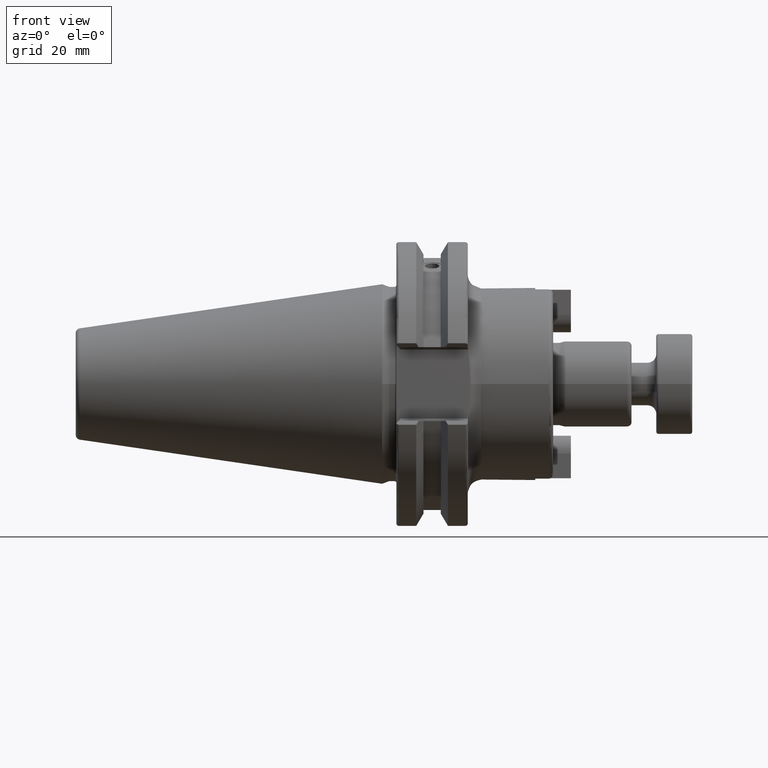
[diagram: clean part render]
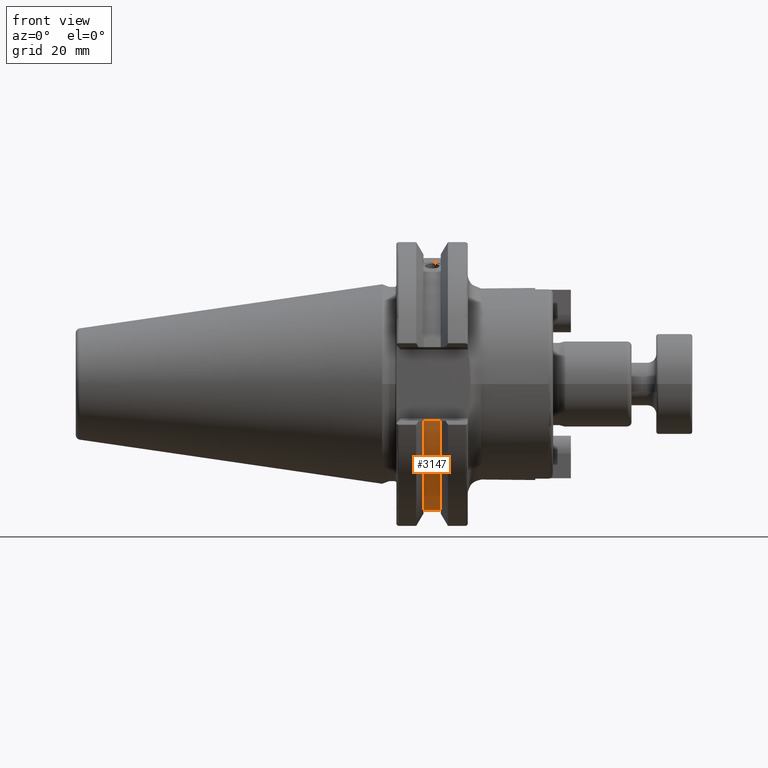
[diagram: same view with one face highlighted and labeled with its STEP entity id]
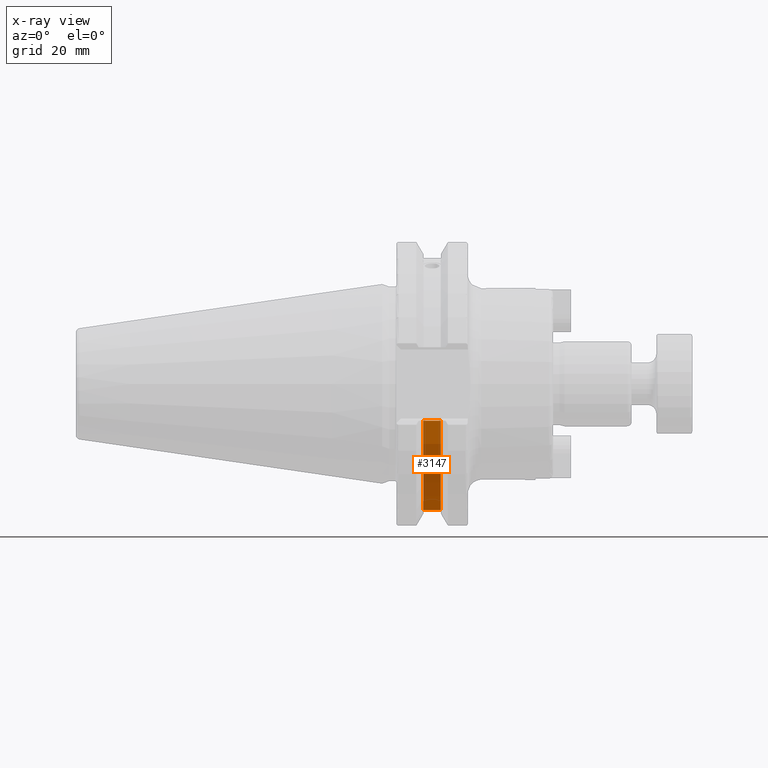
[diagram: x-ray of the same camera — body ghosted, the highlighted face saturated]
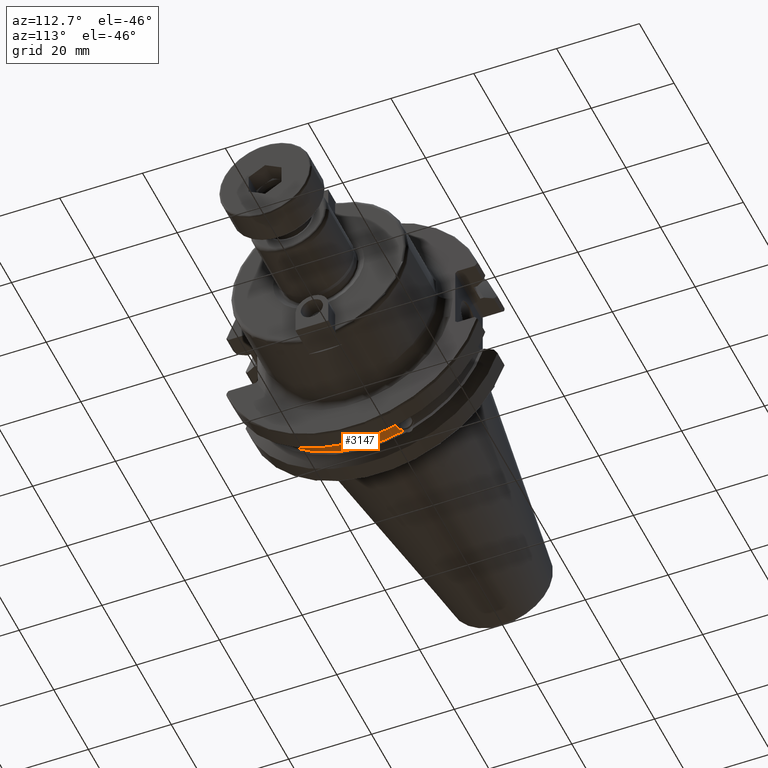
[diagram: same view with one face highlighted and labeled with its STEP entity id]
A machine part, front view. The second image highlights one B-rep face of the part: STEP entity #3147.
The next image is the same camera in x-ray: the body ghosted, the highlighted face saturated — about 0% of this face is hidden behind the body in this view.
A second angle (auxiliary view) of the same face is appended — the face is thin or edge-on in the first view.
In plain terms, the highlighted cylindrical surface (partial cylindrical patch) has radius 28.15 mm, axis along (1, 0, 0).
Its self-contained STEP definition (entity closure, byte-faithful):
#445=CARTESIAN_POINT('',(3.628503937008E-1,3.472129702295E-1,
-1.052473507894E0));
#446=CARTESIAN_POINT('',(3.652490708476E-1,3.421063017045E-1,
-1.054158207351E0));
#447=CARTESIAN_POINT('',(3.710883446170E-1,3.325129750843E-1,
-1.057241697940E0));
#448=CARTESIAN_POINT('',(3.831355651528E-1,3.198019938941E-1,
-1.061146913832E0));
#449=CARTESIAN_POINT('',(3.982224892125E-1,3.095194666412E-1,
-1.064181893461E0));
#450=CARTESIAN_POINT('',(4.166089875815E-1,3.022703946370E-1,
-1.066254659124E0));
#451=CARTESIAN_POINT('',(4.307672161502E-1,3.003025428222E-1,
-1.066806315265E0));
#452=CARTESIAN_POINT('',(4.383503937008E-1,3.003025428222E-1,
-1.066806315265E0));
#454=CARTESIAN_POINT('',(3.628503937008E-1,0.E0,0.E0));
#455=DIRECTION('',(-1.E0,0.E0,0.E0));
#456=DIRECTION('',(0.E0,3.132934083066E-1,-9.496563801248E-1));
#457=AXIS2_PLACEMENT_3D('',#454,#455,#456);
#459=DIRECTION('',(1.E0,0.E0,0.E0));
#460=VECTOR('',#459,1.51E-1);
#461=CARTESIAN_POINT('',(3.628503937008E-1,-1.060325029686E0,
-3.224409448819E-1));
#462=LINE('',#461,#460);
#463=CARTESIAN_POINT('',(5.138503937008E-1,0.E0,0.E0));
#464=DIRECTION('',(1.E0,0.E0,0.E0));
#465=DIRECTION('',(0.E0,-9.567408793613E-1,-2.909413854352E-1));
#466=AXIS2_PLACEMENT_3D('',#463,#464,#465);
#468=CARTESIAN_POINT('',(4.383503937008E-1,3.003025428222E-1,
-1.066806315265E0));
#469=CARTESIAN_POINT('',(4.454354222684E-1,3.003025428222E-1,
-1.066806315265E0));
#470=CARTESIAN_POINT('',(4.590221533280E-1,3.019846111771E-1,
-1.066335101230E0));
#471=CARTESIAN_POINT('',(4.784641972192E-1,3.093850058672E-1,
-1.064222736930E0));
#472=CARTESIAN_POINT('',(4.945376170547E-1,3.205450470436E-1,
-1.060926574051E0));
#473=CARTESIAN_POINT('',(5.065184125016E-1,3.337740567741E-1,
-1.056843759651E0));
#474=CARTESIAN_POINT('',(5.117313020075E-1,3.427015257168E-1,
-1.053961841840E0));
#475=CARTESIAN_POINT('',(5.138503937008E-1,3.472129702295E-1,
-1.052473507894E0));
#2213=CARTESIAN_POINT('',(3.628503937008E-1,-1.060325029686E0,
-3.224409448819E-1));
#2215=VERTEX_POINT('',#2213);
#2218=CARTESIAN_POINT('',(5.138503937008E-1,-1.060325029686E0,
-3.224409448819E-1));
#2219=VERTEX_POINT('',#2218);
#2344=CARTESIAN_POINT('',(3.628503937008E-1,3.472129702295E-1,
-1.052473507894E0));
#2345=VERTEX_POINT('',#2344);
#2349=VERTEX_POINT('',#452);
#2350=VERTEX_POINT('',#475);
#3130=CARTESIAN_POINT('',(0.E0,0.E0,0.E0));
#3131=DIRECTION('',(1.E0,0.E0,0.E0));
#3132=DIRECTION('',(0.E0,0.E0,1.E0));
#3133=AXIS2_PLACEMENT_3D('',#3130,#3131,#3132);
#3134=CYLINDRICAL_SURFACE('',#3133,1.108267716535E0);
#3136=ORIENTED_EDGE('',*,*,#3135,.F.);
#3138=ORIENTED_EDGE('',*,*,#3137,.T.);
#3140=ORIENTED_EDGE('',*,*,#3139,.T.);
#3142=ORIENTED_EDGE('',*,*,#3141,.T.);
#3144=ORIENTED_EDGE('',*,*,#3143,.F.);
#3145=EDGE_LOOP('',(#3136,#3138,#3140,#3142,#3144));
#3146=FACE_OUTER_BOUND('',#3145,.F.);
#3147=ADVANCED_FACE('',(#3146),#3134,.T.);
#453=B_SPLINE_CURVE_WITH_KNOTS('',3,(#445,#446,#447,#448,#449,#450,#451,#452),
.UNSPECIFIED.,.F.,.F.,(4,1,1,1,1,4),(0.E0,2.E-1,4.E-1,6.E-1,8.E-1,1.E0),
.UNSPECIFIED.);
#458=CIRCLE('',#457,1.108267716535E0);
#467=CIRCLE('',#466,1.108267716535E0);
#476=B_SPLINE_CURVE_WITH_KNOTS('',3,(#468,#469,#470,#471,#472,#473,#474,#475),
.UNSPECIFIED.,.F.,.F.,(4,1,1,1,1,4),(0.E0,2.E-1,4.E-1,6.E-1,8.E-1,1.E0),
.UNSPECIFIED.);
#3135=EDGE_CURVE('',#2345,#2349,#453,.T.);
#3137=EDGE_CURVE('',#2345,#2215,#458,.T.);
#3139=EDGE_CURVE('',#2215,#2219,#462,.T.);
#3141=EDGE_CURVE('',#2219,#2350,#467,.T.);
#3143=EDGE_CURVE('',#2349,#2350,#476,.T.);